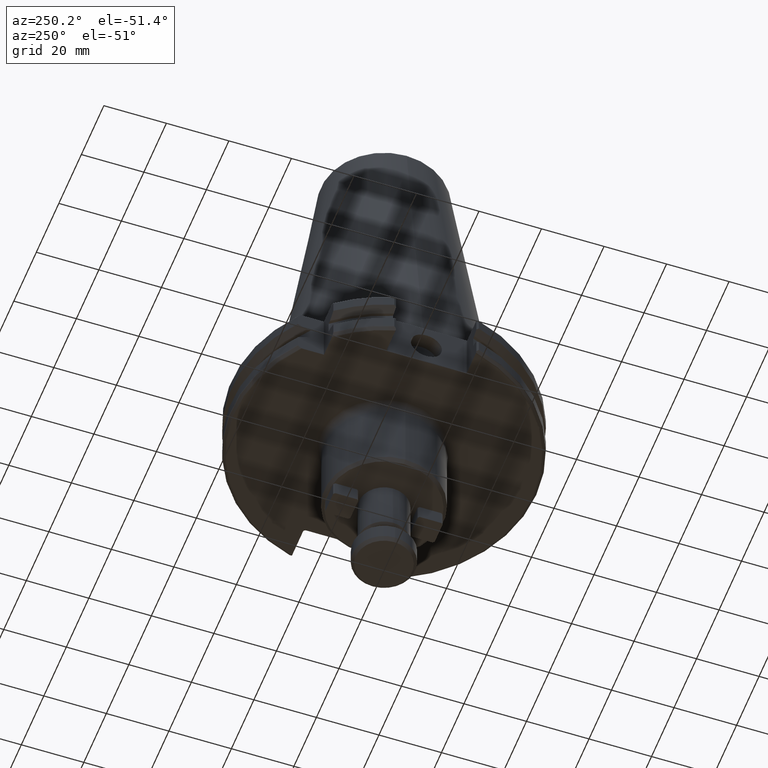
[diagram: clean part render]
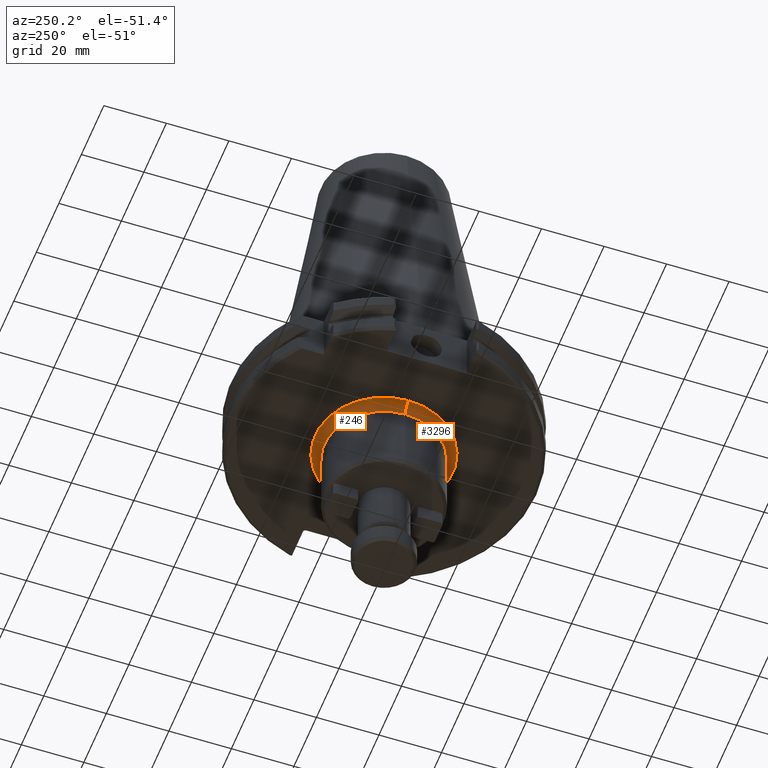
[diagram: same view with one multi-face feature highlighted, each face labeled with its STEP entity id]
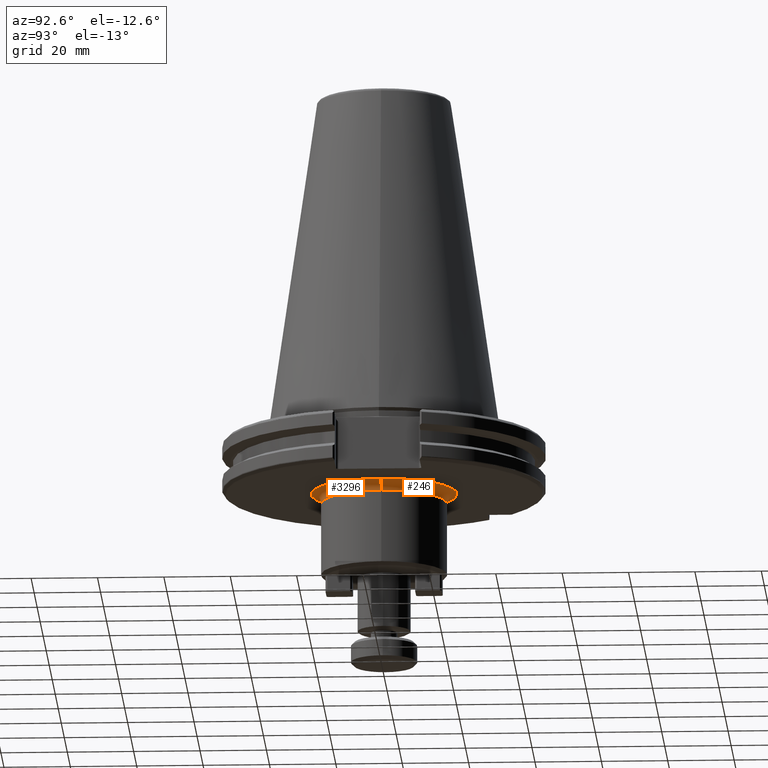
[diagram: same view with one multi-face feature highlighted, each face labeled with its STEP entity id]
A machine part, auxiliary view. The highlighted faces form ONE feature: a constant-radius fillet chain: 2 tangent blend faces with common blend radius 3 mm. The faces share edges in the B-rep.
A second angle (auxiliary view) of the same feature is appended — it is thin or edge-on in the first view.
Their STEP definitions:
[1] entity #246 (Torus):
#48 = CARTESIAN_POINT ( 'NONE',  ( 22.00000000000000000, 2.694222958124176800E-015, -22.10000000000000500 ) ) ;
#69 = VERTEX_POINT ( 'NONE', #2992 ) ;
#97 = ORIENTED_EDGE ( 'NONE', *, *, #721, .F. ) ;
#246 = ADVANCED_FACE ( 'NONE', ( #2348 ), #3665, .F. ) ;
#263 = DIRECTION ( 'NONE',  ( -1.000000000000000000, 0.0000000000000000000, 0.0000000000000000000 ) ) ;
#339 = EDGE_LOOP ( 'NONE', ( #97, #2073, #1519, #973 ) ) ;
#721 = EDGE_CURVE ( 'NONE', #1890, #69, #3716, .T. ) ;
#741 = CARTESIAN_POINT ( 'NONE',  ( -22.00000000000000000, 0.0000000000000000000, -22.10000000000000500 ) ) ;
#802 = VERTEX_POINT ( 'NONE', #2804 ) ;
#969 = CARTESIAN_POINT ( 'NONE',  ( 0.0000000000000000000, 0.0000000000000000000, -19.10000000000000500 ) ) ;
#973 = ORIENTED_EDGE ( 'NONE', *, *, #3049, .F. ) ;
#1041 = DIRECTION ( 'NONE',  ( 0.0000000000000000000, 0.0000000000000000000, -1.000000000000000000 ) ) ;
#1076 = CARTESIAN_POINT ( 'NONE',  ( 0.0000000000000000000, 0.0000000000000000000, -22.10000000000000500 ) ) ;
#1128 = CARTESIAN_POINT ( 'NONE',  ( 19.00000000000000000, 0.0000000000000000000, -22.10000000000000500 ) ) ;
#1130 = CIRCLE ( 'NONE', #2999, 19.00000000000000000 ) ;
#1267 = DIRECTION ( 'NONE',  ( -1.000000000000000000, 0.0000000000000000000, 0.0000000000000000000 ) ) ;
#1381 = DIRECTION ( 'NONE',  ( -1.000000000000000000, 0.0000000000000000000, 0.0000000000000000000 ) ) ;
#1519 = ORIENTED_EDGE ( 'NONE', *, *, #2120, .T. ) ;
#1578 = CARTESIAN_POINT ( 'NONE',  ( -19.00000000000000000, 2.326828918379971000E-015, -22.10000000000000500 ) ) ;
#1890 = VERTEX_POINT ( 'NONE', #1128 ) ;
#1992 = VERTEX_POINT ( 'NONE', #1578 ) ;
#2073 = ORIENTED_EDGE ( 'NONE', *, *, #3609, .F. ) ;
#2120 = EDGE_CURVE ( 'NONE', #1992, #802, #3210, .T. ) ;
#2348 = FACE_OUTER_BOUND ( 'NONE', #339, .T. ) ;
#2400 = AXIS2_PLACEMENT_3D ( 'NONE', #741, #2861, #1041 ) ;
#2640 = AXIS2_PLACEMENT_3D ( 'NONE', #969, #3077, #1267 ) ;
#2728 = DIRECTION ( 'NONE',  ( 0.0000000000000000000, 0.0000000000000000000, -1.000000000000000000 ) ) ;
#2804 = CARTESIAN_POINT ( 'NONE',  ( -22.00000000000000000, 0.0000000000000000000, -19.10000000000000500 ) ) ;
#2810 = AXIS2_PLACEMENT_3D ( 'NONE', #48, #3336, #3035 ) ;
#2861 = DIRECTION ( 'NONE',  ( -0.0000000000000000000, -1.000000000000000000, -0.0000000000000000000 ) ) ;
#2992 = CARTESIAN_POINT ( 'NONE',  ( 22.00000000000000000, 2.694222958124176800E-015, -19.10000000000000500 ) ) ;
#2999 = AXIS2_PLACEMENT_3D ( 'NONE', #1076, #3184, #1381 ) ;
#3035 = DIRECTION ( 'NONE',  ( -1.000000000000000000, -1.224646799147353500E-016, 0.0000000000000000000 ) ) ;
#3049 = EDGE_CURVE ( 'NONE', #69, #802, #3380, .T. ) ;
#3077 = DIRECTION ( 'NONE',  ( -0.0000000000000000000, -0.0000000000000000000, 1.000000000000000000 ) ) ;
#3184 = DIRECTION ( 'NONE',  ( 0.0000000000000000000, 0.0000000000000000000, -1.000000000000000000 ) ) ;
#3210 = CIRCLE ( 'NONE', #2400, 2.999999999999999100 ) ;
#3223 = AXIS2_PLACEMENT_3D ( 'NONE', #3310, #2728, #263 ) ;
#3310 = CARTESIAN_POINT ( 'NONE',  ( 0.0000000000000000000, 0.0000000000000000000, -22.10000000000000500 ) ) ;
#3336 = DIRECTION ( 'NONE',  ( -1.224646799147353200E-016, 1.000000000000000000, 0.0000000000000000000 ) ) ;
#3380 = CIRCLE ( 'NONE', #2640, 22.00000000000000000 ) ;
#3609 = EDGE_CURVE ( 'NONE', #1992, #1890, #1130, .T. ) ;
#3665 = TOROIDAL_SURFACE ( 'NONE', #3223, 22.00000000000000000, 3.000000000000000000 ) ;
#3716 = CIRCLE ( 'NONE', #2810, 2.999999999999999100 ) ;
[2] entity #3296 (Torus):
#3 = CIRCLE ( 'NONE', #2423, 22.00000000000000000 ) ;
#48 = CARTESIAN_POINT ( 'NONE',  ( 22.00000000000000000, 2.694222958124176800E-015, -22.10000000000000500 ) ) ;
#69 = VERTEX_POINT ( 'NONE', #2992 ) ;
#355 = DIRECTION ( 'NONE',  ( -1.000000000000000000, 0.0000000000000000000, 0.0000000000000000000 ) ) ;
#384 = CARTESIAN_POINT ( 'NONE',  ( 0.0000000000000000000, 0.0000000000000000000, -22.10000000000000500 ) ) ;
#551 = AXIS2_PLACEMENT_3D ( 'NONE', #384, #2534, #688 ) ;
#660 = EDGE_CURVE ( 'NONE', #802, #69, #3, .T. ) ;
#688 = DIRECTION ( 'NONE',  ( -1.000000000000000000, 0.0000000000000000000, 0.0000000000000000000 ) ) ;
#721 = EDGE_CURVE ( 'NONE', #1890, #69, #3716, .T. ) ;
#741 = CARTESIAN_POINT ( 'NONE',  ( -22.00000000000000000, 0.0000000000000000000, -22.10000000000000500 ) ) ;
#802 = VERTEX_POINT ( 'NONE', #2804 ) ;
#1041 = DIRECTION ( 'NONE',  ( 0.0000000000000000000, 0.0000000000000000000, -1.000000000000000000 ) ) ;
#1128 = CARTESIAN_POINT ( 'NONE',  ( 19.00000000000000000, 0.0000000000000000000, -22.10000000000000500 ) ) ;
#1254 = ORIENTED_EDGE ( 'NONE', *, *, #660, .F. ) ;
#1266 = CIRCLE ( 'NONE', #551, 19.00000000000000000 ) ;
#1528 = DIRECTION ( 'NONE',  ( -1.000000000000000000, 0.0000000000000000000, 0.0000000000000000000 ) ) ;
#1578 = CARTESIAN_POINT ( 'NONE',  ( -19.00000000000000000, 2.326828918379971000E-015, -22.10000000000000500 ) ) ;
#1613 = ORIENTED_EDGE ( 'NONE', *, *, #2120, .F. ) ;
#1890 = VERTEX_POINT ( 'NONE', #1128 ) ;
#1929 = ORIENTED_EDGE ( 'NONE', *, *, #3438, .F. ) ;
#1938 = TOROIDAL_SURFACE ( 'NONE', #2691, 22.00000000000000000, 3.000000000000000000 ) ;
#1992 = VERTEX_POINT ( 'NONE', #1578 ) ;
#2083 = ORIENTED_EDGE ( 'NONE', *, *, #721, .T. ) ;
#2120 = EDGE_CURVE ( 'NONE', #1992, #802, #3210, .T. ) ;
#2195 = DIRECTION ( 'NONE',  ( -0.0000000000000000000, -0.0000000000000000000, 1.000000000000000000 ) ) ;
#2400 = AXIS2_PLACEMENT_3D ( 'NONE', #741, #2861, #1041 ) ;
#2423 = AXIS2_PLACEMENT_3D ( 'NONE', #3358, #2195, #355 ) ;
#2534 = DIRECTION ( 'NONE',  ( 0.0000000000000000000, 0.0000000000000000000, -1.000000000000000000 ) ) ;
#2691 = AXIS2_PLACEMENT_3D ( 'NONE', #3042, #3344, #1528 ) ;
#2804 = CARTESIAN_POINT ( 'NONE',  ( -22.00000000000000000, 0.0000000000000000000, -19.10000000000000500 ) ) ;
#2810 = AXIS2_PLACEMENT_3D ( 'NONE', #48, #3336, #3035 ) ;
#2861 = DIRECTION ( 'NONE',  ( -0.0000000000000000000, -1.000000000000000000, -0.0000000000000000000 ) ) ;
#2948 = EDGE_LOOP ( 'NONE', ( #1929, #2083, #1254, #1613 ) ) ;
#2992 = CARTESIAN_POINT ( 'NONE',  ( 22.00000000000000000, 2.694222958124176800E-015, -19.10000000000000500 ) ) ;
#3035 = DIRECTION ( 'NONE',  ( -1.000000000000000000, -1.224646799147353500E-016, 0.0000000000000000000 ) ) ;
#3042 = CARTESIAN_POINT ( 'NONE',  ( 0.0000000000000000000, 0.0000000000000000000, -22.10000000000000500 ) ) ;
#3210 = CIRCLE ( 'NONE', #2400, 2.999999999999999100 ) ;
#3296 = ADVANCED_FACE ( 'NONE', ( #3846 ), #1938, .F. ) ;
#3336 = DIRECTION ( 'NONE',  ( -1.224646799147353200E-016, 1.000000000000000000, 0.0000000000000000000 ) ) ;
#3344 = DIRECTION ( 'NONE',  ( 0.0000000000000000000, 0.0000000000000000000, -1.000000000000000000 ) ) ;
#3358 = CARTESIAN_POINT ( 'NONE',  ( 0.0000000000000000000, 0.0000000000000000000, -19.10000000000000500 ) ) ;
#3438 = EDGE_CURVE ( 'NONE', #1890, #1992, #1266, .T. ) ;
#3716 = CIRCLE ( 'NONE', #2810, 2.999999999999999100 ) ;
#3846 = FACE_OUTER_BOUND ( 'NONE', #2948, .T. ) ;